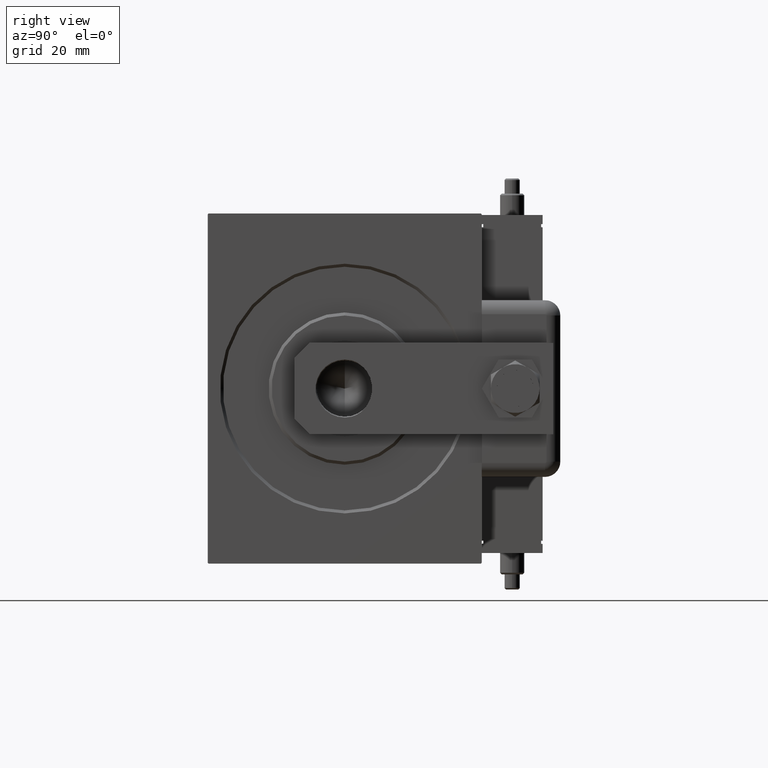
[diagram: clean part render]
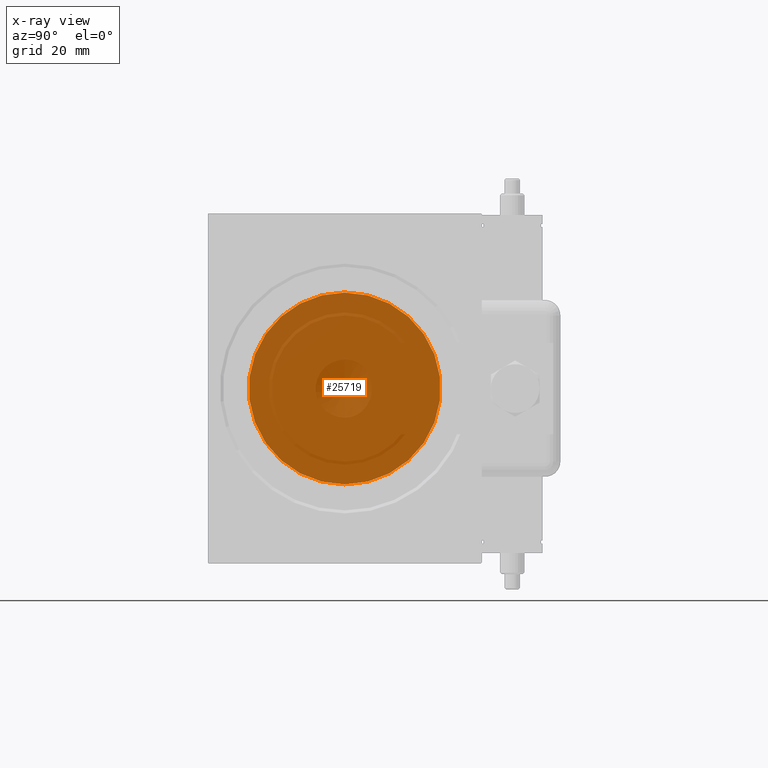
[diagram: x-ray — body ghosted, one internal face saturated and labeled with its STEP entity id]
A machine part, right view, then the same camera in x-ray: the body is ghosted and one INTERNAL B-rep face — a face not visible from any outside direction — is saturated and labeled: STEP entity #25719.
In plain terms, the highlighted planar face has unit normal (1, 0, -0).
Its self-contained STEP definition (entity closure, byte-faithful):
#798 = PLANE ( 'NONE',  #3563 ) ;
#3535 = CIRCLE ( 'NONE', #32702, 31.50000000000000000 ) ;
#3563 = AXIS2_PLACEMENT_3D ( 'NONE', #28222, #13889, #46809 ) ;
#10195 = CARTESIAN_POINT ( 'NONE',  ( 90.50000000000000000, 0.000000000000000000, 31.50000000000000000 ) ) ;
#13889 = DIRECTION ( 'NONE',  ( -1.000000000000000000, 0.000000000000000000, 0.000000000000000000 ) ) ;
#15309 = ORIENTED_EDGE ( 'NONE', *, *, #47206, .T. ) ;
#18158 = CARTESIAN_POINT ( 'NONE',  ( 90.50000000000000000, 0.000000000000000000, 0.000000000000000000 ) ) ;
#19368 = FACE_OUTER_BOUND ( 'NONE', #33737, .T. ) ;
#23038 = DIRECTION ( 'NONE',  ( 0.000000000000000000, 0.000000000000000000, 1.000000000000000000 ) ) ;
#25719 = ADVANCED_FACE ( 'NONE', ( #19368 ), #798, .T. ) ;
#28222 = CARTESIAN_POINT ( 'NONE',  ( 90.50000000000000000, 0.000000000000000000, 0.000000000000000000 ) ) ;
#32702 = AXIS2_PLACEMENT_3D ( 'NONE', #18158, #36142, #23038 ) ;
#33737 = EDGE_LOOP ( 'NONE', ( #15309, #55272 ) ) ;
#35175 = CARTESIAN_POINT ( 'NONE',  ( 90.50000000000000000, 0.000000000000000000, 0.000000000000000000 ) ) ;
#36142 = DIRECTION ( 'NONE',  ( -1.000000000000000000, 0.000000000000000000, 0.000000000000000000 ) ) ;
#41978 = VERTEX_POINT ( 'NONE', #10195 ) ;
#44329 = CIRCLE ( 'NONE', #45278, 31.50000000000000000 ) ;
#45278 = AXIS2_PLACEMENT_3D ( 'NONE', #35175, #58028, #48312 ) ;
#46564 = EDGE_CURVE ( 'NONE', #52049, #41978, #44329, .T. ) ;
#46809 = DIRECTION ( 'NONE',  ( 0.000000000000000000, 0.000000000000000000, 1.000000000000000000 ) ) ;
#47206 = EDGE_CURVE ( 'NONE', #41978, #52049, #3535, .T. ) ;
#48312 = DIRECTION ( 'NONE',  ( 0.000000000000000000, 0.000000000000000000, 1.000000000000000000 ) ) ;
#49103 = CARTESIAN_POINT ( 'NONE',  ( 90.50000000000000000, 3.857637417314162689E-15, -31.50000000000000000 ) ) ;
#52049 = VERTEX_POINT ( 'NONE', #49103 ) ;
#55272 = ORIENTED_EDGE ( 'NONE', *, *, #46564, .T. ) ;
#58028 = DIRECTION ( 'NONE',  ( -1.000000000000000000, 0.000000000000000000, 0.000000000000000000 ) ) ;